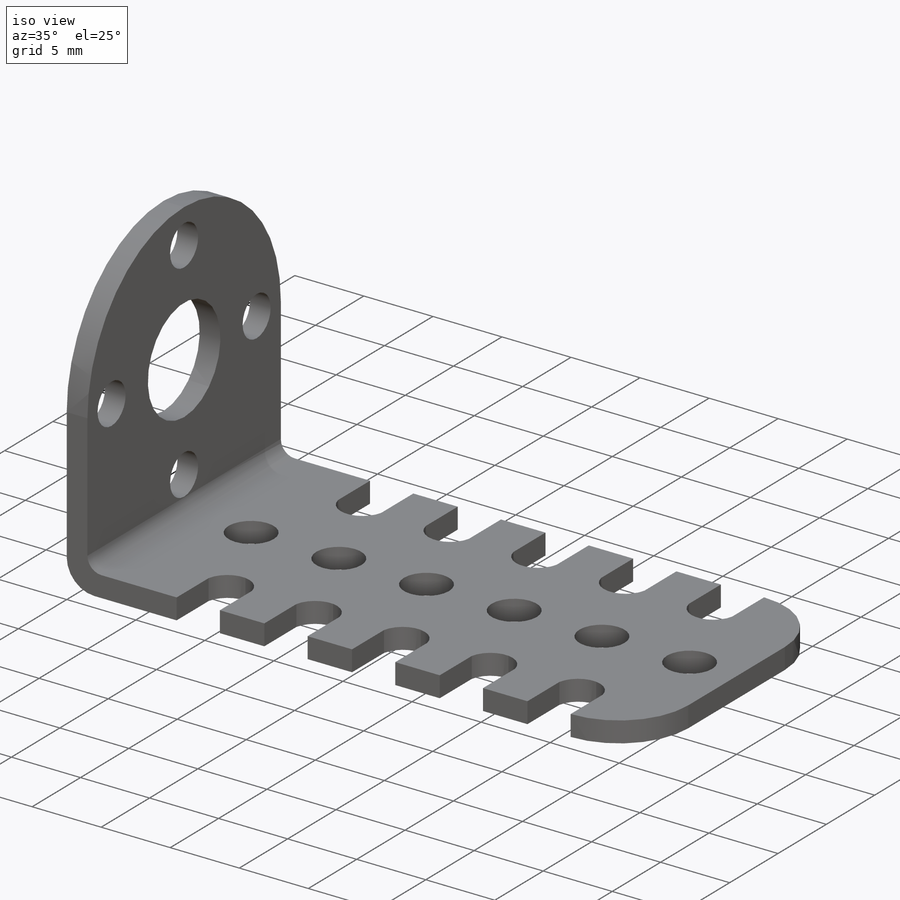
[diagram: iso view]
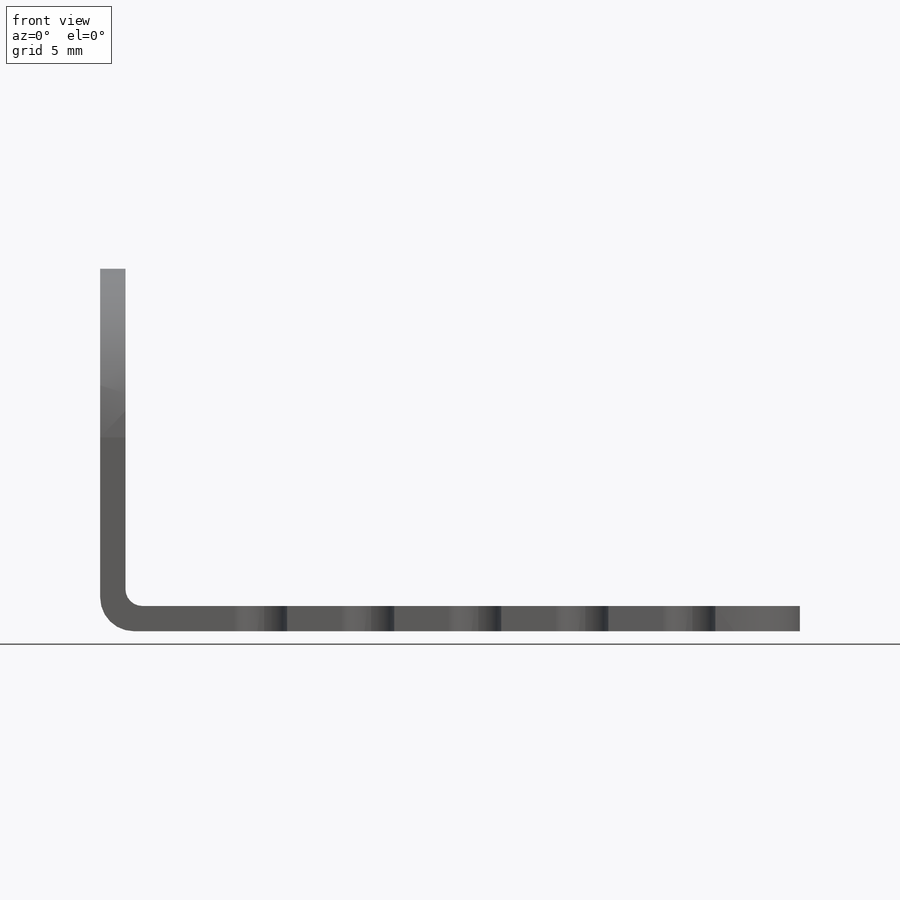
[diagram: front view]
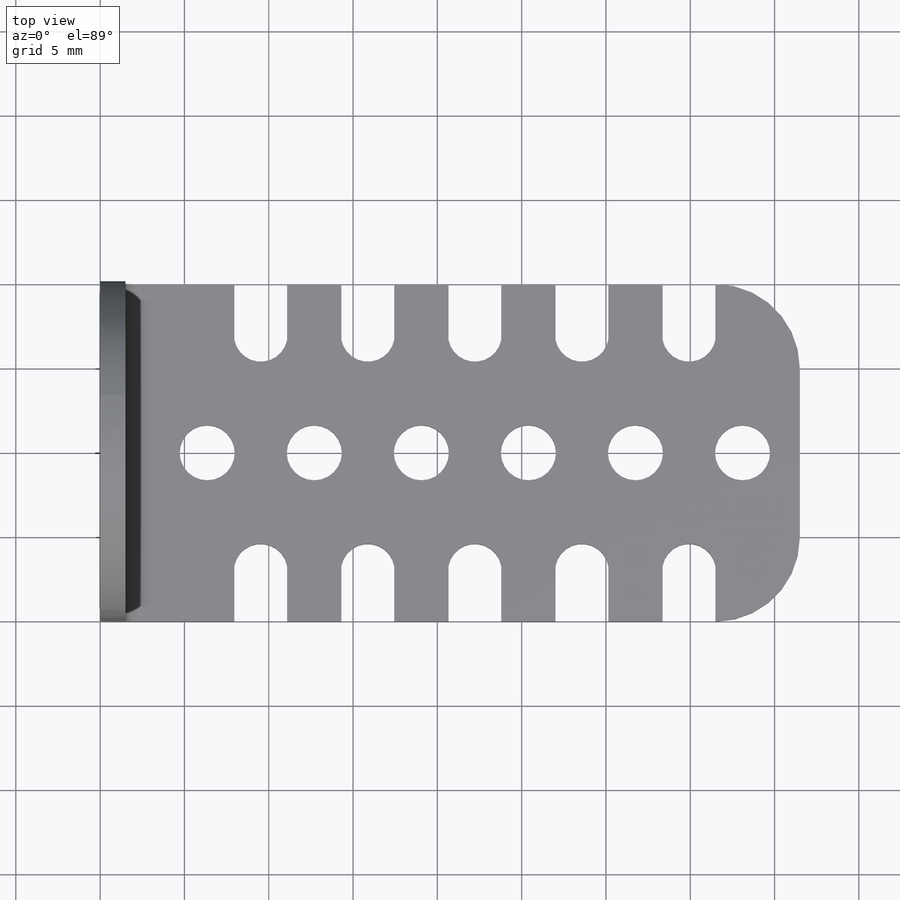
[diagram: top view]
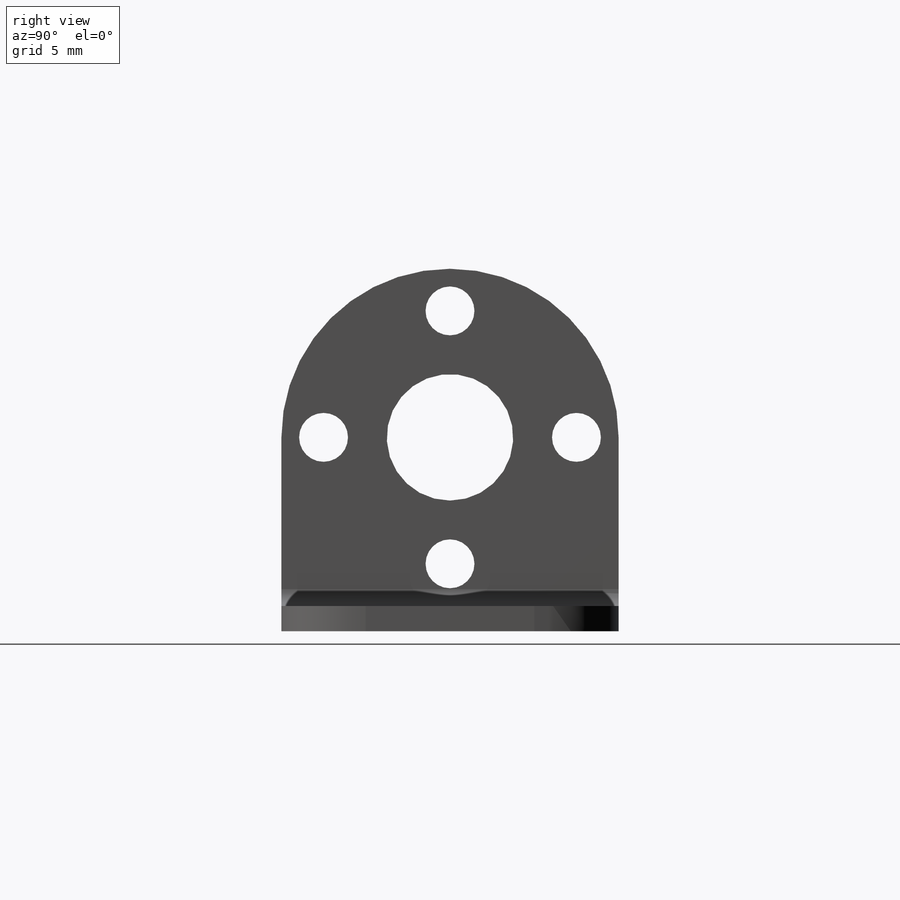
[diagram: right view]
SOLIDWORKS PART (.sldprt)
format: sldprt  version: not decoded by parser v0  size: 335,360 bytes
history: native  units: mm
features: sketch x5, fillet x4, cut_extrude x2, material x1, extrude x1, hole x1, plane x1 (+12 scaffold rows collapsed)
feature tree (27):
  scaffold x12  (default folders/planes/origin — collapsed)
  material  "1060 Alloy"
  sketch  "Sketch1"  dims[c1.D4=38.1mm c1.D1=38.1mm c1.D2=1016.0mm c1.D3=~64.644902mm c2.D2=1016.0mm c2.D4=~26.544902mm c2.D3=508.0mm c2.D1=40.0mm c3.D2=1.5mm c3.D3=20.0mm]
  extrude  "Boss-Extrude1"  Depth=20mm
  fillet  "Fillet1"  Radius=2mm
  fillet  "Fillet2"  Radius=1mm
  sketch  "Sketch3"  dims[D6=~4.492004mm D7=~4.492004mm D1=3.13mm D2=3.0mm D3=9.525mm D5=6.35mm D4=5.0]
  cut_extrude  "Cut-Extrude1"  [1 undecoded]
  hole  "#4 Clearance Hole1"  Diameter=3.2639mm Depth=1.5mm
  sketch  "Sketch6"  dims[D1=6.35mm D2=6.35mm D3=6.35mm D4=6.35mm D5=6.35mm D6=6.35mm]
  sketch  "Sketch4"  dims[hole-wizard template sketch: 60 standard entries collapsed; hole parameters kept: c18.Thru Hole Depth=1.5mm]
  fillet  "Fillet3"  Radius=5mm
  fillet  "Fillet4"  Radius=10mm
  sketch  "Sketch7"  dims[D1=2.9mm D2=7.5mm D3=11.5mm D4=15.0mm D5=15.0mm D6=7.5mm D7=7.5mm]
  cut_extrude  "Cut-Extrude2"  [1 undecoded]
  plane  "Plane1"
decode coverage: 11 of 13 modeling features carry decoded parameters
note: ~ marks probable driven/reference dimensions
note: 2 parameter values undecoded
note: suppression state not decoded; provenance and decode notes live in map.json
